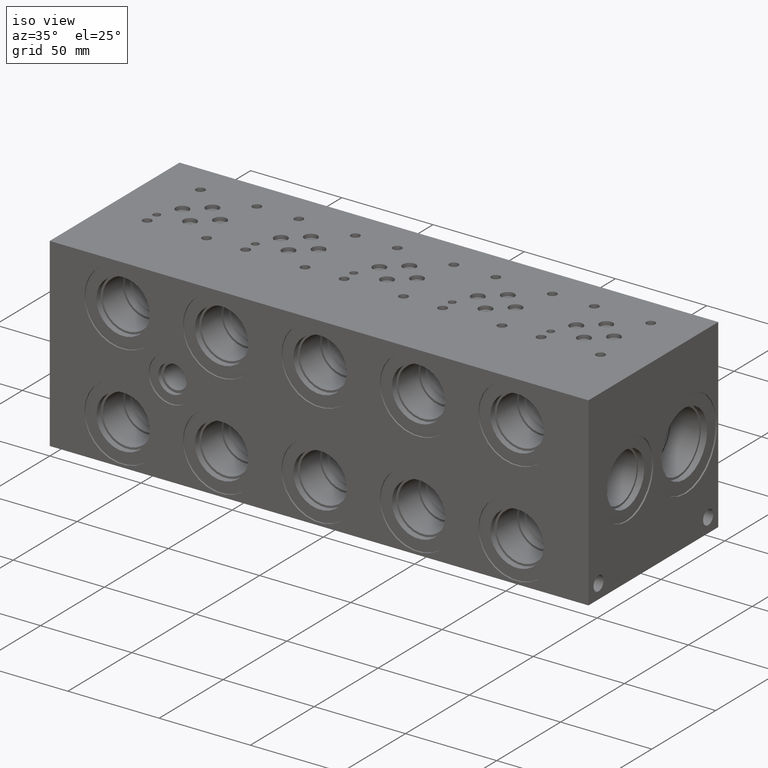
[diagram: clean part render]
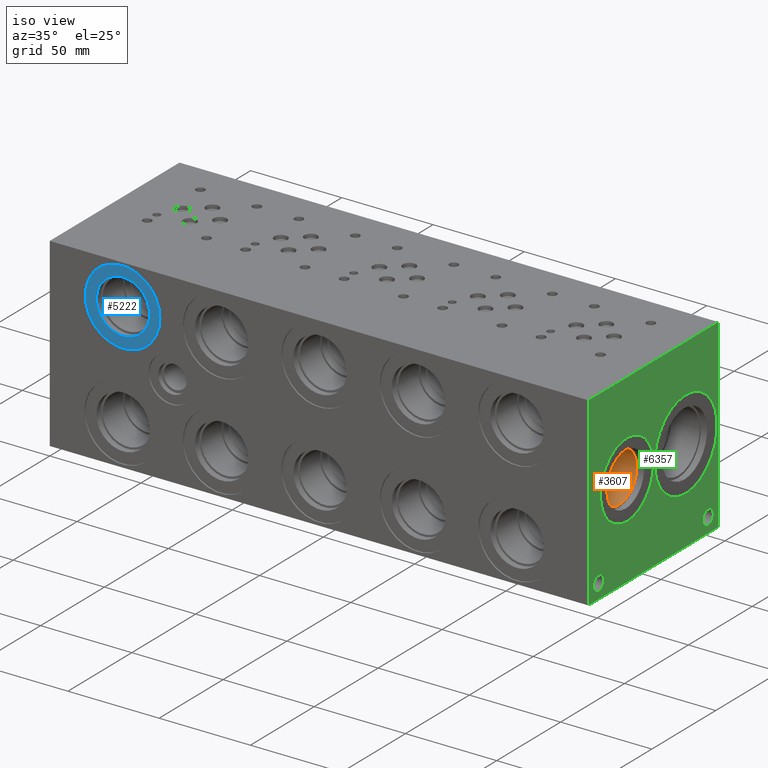
[diagram: same view with three faces highlighted in distinct colors, each labeled with its STEP entity id]
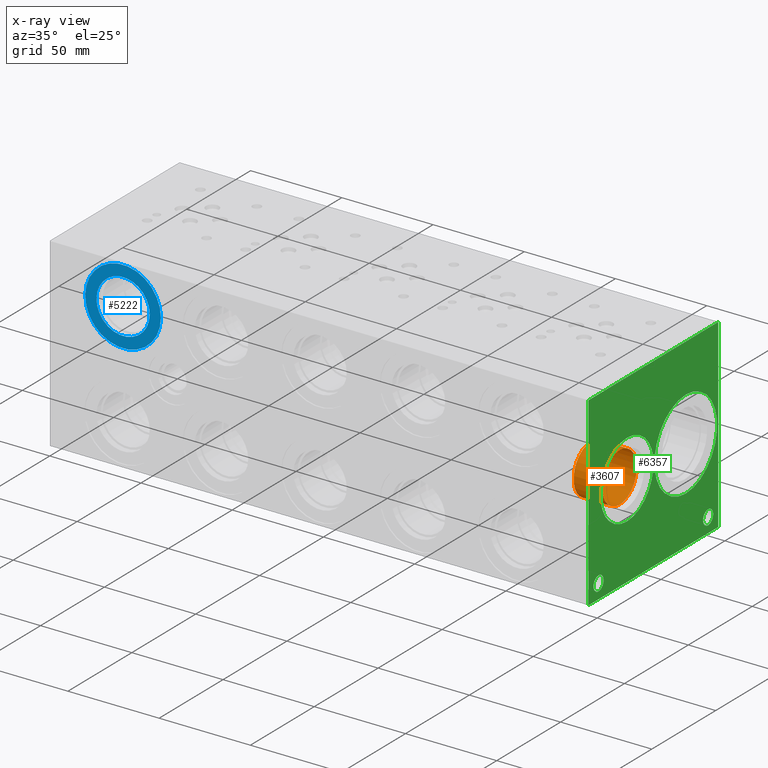
[diagram: x-ray of the same camera — body ghosted, the three highlighted faces saturated]
A machine part, iso view with three faces highlighted in distinct colors.
The next image is the same camera in x-ray (body ghosted, the three faces saturated) — at least one of them is partly hidden behind the body in this view.
Their STEP definitions:

[orange] entity #3607 — the highlighted cylindrical surface (bore or boss wall) has radius 13.4938 mm, axis along (1, 0, 0).
#3573=CARTESIAN_POINT('',(275.43759999999997,30.175200000000004,37.306249999999999));
#3574=VERTEX_POINT('',#3573);
#3575=CARTESIAN_POINT('',(275.43759999999997,30.175200000000004,50.799999999999997));
#3576=DIRECTION('',(1.0,0.0,0.0));
#3577=DIRECTION('',(0.0,0.0,-1.0));
#3578=AXIS2_PLACEMENT_3D('',#3575,#3576,#3577);
#3579=CIRCLE('',#3578,13.493750000000002);
#3580=EDGE_CURVE('',#3574,#3574,#3579,.T.);
#3588=CARTESIAN_POINT('',(283.3116,30.175200000000004,50.799999999999997));
#3589=DIRECTION('',(1.0,0.0,0.0));
#3590=DIRECTION('',(0.0,0.0,-1.0));
#3591=AXIS2_PLACEMENT_3D('',#3588,#3589,#3590);
#3592=CYLINDRICAL_SURFACE('',#3591,13.493750000000002);
#3593=CARTESIAN_POINT('',(291.18559999999997,30.175200000000004,37.306249999999999));
#3594=VERTEX_POINT('',#3593);
#3595=CARTESIAN_POINT('',(291.18559999999997,30.175200000000004,50.799999999999997));
#3596=DIRECTION('',(1.0,0.0,0.0));
#3597=DIRECTION('',(0.0,0.0,-1.0));
#3598=AXIS2_PLACEMENT_3D('',#3595,#3596,#3597);
#3599=CIRCLE('',#3598,13.493750000000002);
#3600=EDGE_CURVE('',#3594,#3594,#3599,.T.);
#3601=ORIENTED_EDGE('',*,*,#3600,.T.);
#3602=EDGE_LOOP('',(#3601));
#3603=FACE_OUTER_BOUND('',#3602,.T.);
#3604=ORIENTED_EDGE('',*,*,#3580,.F.);
#3605=EDGE_LOOP('',(#3604));
#3606=FACE_BOUND('',#3605,.T.);
#3607=ADVANCED_FACE('',(#3603,#3606),#3592,.F.);

[blue] entity #5222 — the highlighted planar face has unit normal (0, 1, 0).
#5188=CARTESIAN_POINT('',(54.279799999999994,0.762,79.375));
#5189=VERTEX_POINT('',#5188);
#5190=CARTESIAN_POINT('',(39.674800000000005,0.762,79.375));
#5191=DIRECTION('',(0.0,-1.0,0.0));
#5192=DIRECTION('',(1.0,0.0,0.0));
#5193=AXIS2_PLACEMENT_3D('',#5190,#5191,#5192);
#5194=CIRCLE('',#5193,14.604999999999997);
#5195=EDGE_CURVE('',#5189,#5189,#5194,.T.);
#5203=CARTESIAN_POINT('',(57.340499999999999,0.762,79.375));
#5204=DIRECTION('',(0.0,1.0,0.0));
#5205=DIRECTION('',(0.0,0.0,1.0));
#5206=AXIS2_PLACEMENT_3D('',#5203,#5204,#5205);
#5207=PLANE('',#5206);
#5208=CARTESIAN_POINT('',(60.401200000000003,0.762,79.375));
#5209=VERTEX_POINT('',#5208);
#5210=CARTESIAN_POINT('',(39.674800000000005,0.762,79.375));
#5211=DIRECTION('',(0.0,-1.0,0.0));
#5212=DIRECTION('',(1.0,0.0,0.0));
#5213=AXIS2_PLACEMENT_3D('',#5210,#5211,#5212);
#5214=CIRCLE('',#5213,20.726399999999998);
#5215=EDGE_CURVE('',#5209,#5209,#5214,.T.);
#5216=ORIENTED_EDGE('',*,*,#5215,.T.);
#5217=EDGE_LOOP('',(#5216));
#5218=FACE_OUTER_BOUND('',#5217,.T.);
#5219=ORIENTED_EDGE('',*,*,#5195,.F.);
#5220=EDGE_LOOP('',(#5219));
#5221=FACE_BOUND('',#5220,.T.);
#5222=ADVANCED_FACE('',(#5218,#5221),#5207,.F.);

[green] entity #6357 — the highlighted planar face has unit normal (1, 0, 0).
#3476=CARTESIAN_POINT('',(295.27499999999998,76.200000000000017,26.314399999999996));
#3477=VERTEX_POINT('',#3476);
#3478=CARTESIAN_POINT('',(295.27499999999998,76.200000000000017,50.799999999999997));
#3479=DIRECTION('',(-1.0,0.0,0.0));
#3480=DIRECTION('',(0.0,0.0,-1.0));
#3481=AXIS2_PLACEMENT_3D('',#3478,#3479,#3480);
#3482=CIRCLE('',#3481,24.485600000000005);
#3483=EDGE_CURVE('',#3477,#3477,#3482,.T.);
#3673=CARTESIAN_POINT('',(295.27499999999998,30.175200000000004,30.073599999999999));
#3674=VERTEX_POINT('',#3673);
#3675=CARTESIAN_POINT('',(295.27499999999998,30.175200000000004,50.799999999999997));
#3676=DIRECTION('',(-1.0,0.0,0.0));
#3677=DIRECTION('',(0.0,0.0,-1.0));
#3678=AXIS2_PLACEMENT_3D('',#3675,#3676,#3677);
#3679=CIRCLE('',#3678,20.726400000000002);
#3680=EDGE_CURVE('',#3674,#3674,#3679,.T.);
#3750=CARTESIAN_POINT('',(295.27499999999998,93.675200000000004,3.9497));
#3751=VERTEX_POINT('',#3750);
#3752=CARTESIAN_POINT('',(295.27499999999998,93.675200000000004,7.924800000000001));
#3753=DIRECTION('',(-1.0,0.0,0.0));
#3754=DIRECTION('',(0.0,0.0,-1.0));
#3755=AXIS2_PLACEMENT_3D('',#3752,#3753,#3754);
#3756=CIRCLE('',#3755,3.9751);
#3757=EDGE_CURVE('',#3751,#3751,#3756,.T.);
#3827=CARTESIAN_POINT('',(295.27499999999998,7.924800000000001,3.9497));
#3828=VERTEX_POINT('',#3827);
#3829=CARTESIAN_POINT('',(295.27499999999998,7.924800000000001,7.924800000000001));
#3830=DIRECTION('',(-1.0,0.0,0.0));
#3831=DIRECTION('',(0.0,0.0,-1.0));
#3832=AXIS2_PLACEMENT_3D('',#3829,#3830,#3831);
#3833=CIRCLE('',#3832,3.9751);
#3834=EDGE_CURVE('',#3828,#3828,#3833,.T.);
#6286=CARTESIAN_POINT('',(295.27499999999998,101.59999999999999,101.59999999999999));
#6287=VERTEX_POINT('',#6286);
#6294=CARTESIAN_POINT('',(295.27499999999998,101.59999999999999,0.0));
#6295=VERTEX_POINT('',#6294);
#6296=CARTESIAN_POINT('',(295.27499999999998,101.59999999999999,0.0));
#6297=DIRECTION('',(0.0,0.0,1.0));
#6298=VECTOR('',#6297,101.59999999999999);
#6299=LINE('',#6296,#6298);
#6300=EDGE_CURVE('',#6295,#6287,#6299,.T.);
#6315=CARTESIAN_POINT('',(295.27499999999998,101.59999999999999,0.0));
#6316=DIRECTION('',(1.0,0.0,0.0));
#6317=DIRECTION('',(0.0,0.0,-1.0));
#6318=AXIS2_PLACEMENT_3D('',#6315,#6316,#6317);
#6319=PLANE('',#6318);
#6320=CARTESIAN_POINT('',(295.27499999999998,0.0,101.59999999999999));
#6321=VERTEX_POINT('',#6320);
#6322=CARTESIAN_POINT('',(295.27499999999998,101.59999999999999,101.59999999999999));
#6323=DIRECTION('',(0.0,-1.0,0.0));
#6324=VECTOR('',#6323,101.59999999999999);
#6325=LINE('',#6322,#6324);
#6326=EDGE_CURVE('',#6287,#6321,#6325,.T.);
#6327=ORIENTED_EDGE('',*,*,#6326,.T.);
#6328=CARTESIAN_POINT('',(295.27499999999998,0.0,0.0));
#6329=VERTEX_POINT('',#6328);
#6330=CARTESIAN_POINT('',(295.27499999999998,0.0,0.0));
#6331=DIRECTION('',(0.0,0.0,1.0));
#6332=VECTOR('',#6331,101.59999999999999);
#6333=LINE('',#6330,#6332);
#6334=EDGE_CURVE('',#6329,#6321,#6333,.T.);
#6335=ORIENTED_EDGE('',*,*,#6334,.F.);
#6336=CARTESIAN_POINT('',(295.27499999999998,0.0,0.0));
#6337=DIRECTION('',(0.0,1.0,0.0));
#6338=VECTOR('',#6337,101.59999999999999);
#6339=LINE('',#6336,#6338);
#6340=EDGE_CURVE('',#6329,#6295,#6339,.T.);
#6341=ORIENTED_EDGE('',*,*,#6340,.T.);
#6342=ORIENTED_EDGE('',*,*,#6300,.T.);
#6343=EDGE_LOOP('',(#6327,#6335,#6341,#6342));
#6344=FACE_OUTER_BOUND('',#6343,.T.);
#6345=ORIENTED_EDGE('',*,*,#3483,.T.);
#6346=EDGE_LOOP('',(#6345));
#6347=FACE_BOUND('',#6346,.T.);
#6348=ORIENTED_EDGE('',*,*,#3680,.T.);
#6349=EDGE_LOOP('',(#6348));
#6350=FACE_BOUND('',#6349,.T.);
#6351=ORIENTED_EDGE('',*,*,#3757,.T.);
#6352=EDGE_LOOP('',(#6351));
#6353=FACE_BOUND('',#6352,.T.);
#6354=ORIENTED_EDGE('',*,*,#3834,.T.);
#6355=EDGE_LOOP('',(#6354));
#6356=FACE_BOUND('',#6355,.T.);
#6357=ADVANCED_FACE('',(#6344,#6347,#6350,#6353,#6356),#6319,.T.);